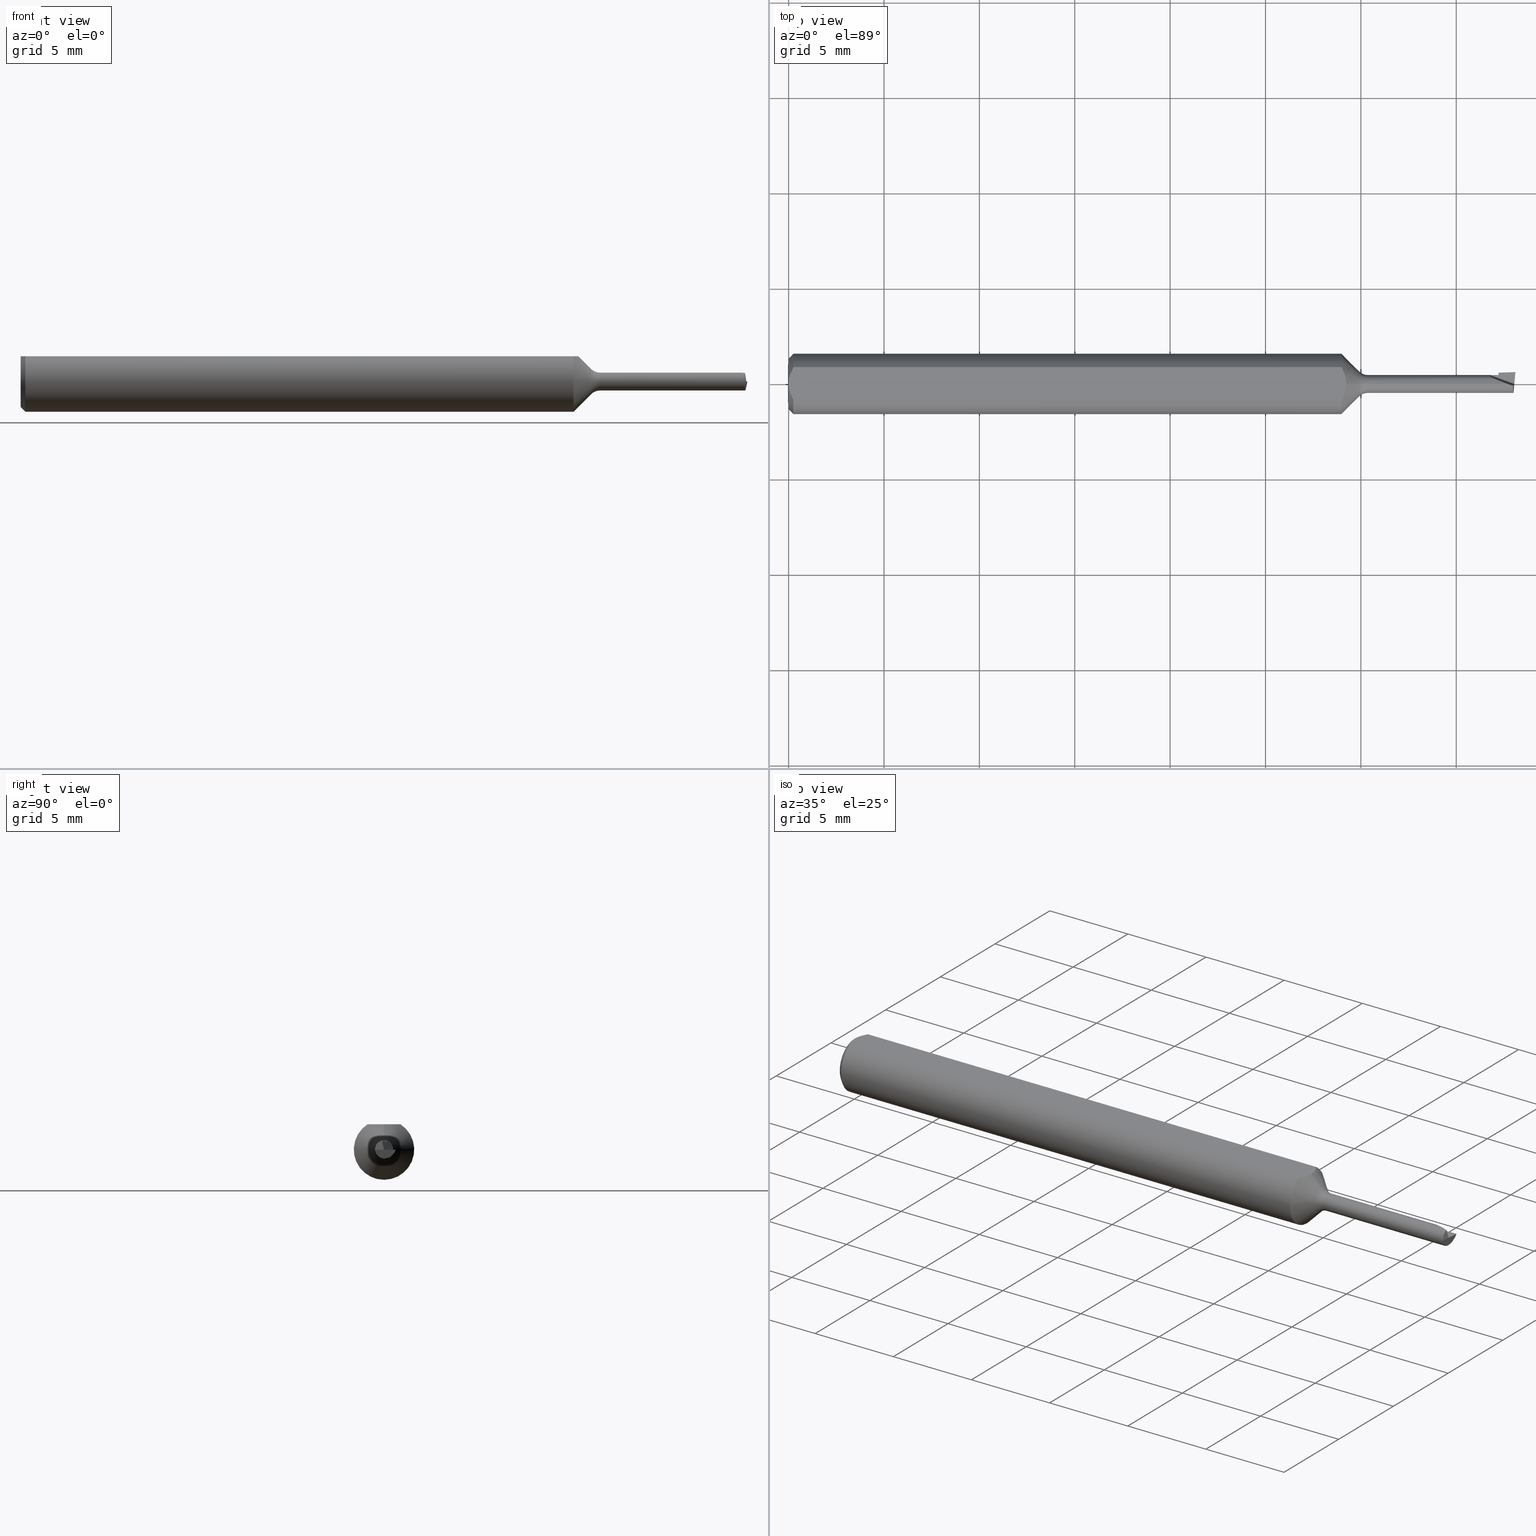
[diagram: canonical four-view strip — front | top / right | iso, engineering-drawing reading convention]
A machine part, canonical four-view strip (front | top / right | iso — engineering-drawing reading convention). The complete STEP part file that produces these views, byte-faithful:
ISO-10303-21;
HEADER;
FILE_DESCRIPTION (( 'STEP AP203' ),
    '1' );
FILE_NAME ('210055-MB045300.STEP',
    '2025-01-30T19:01:10',
    ( '' ),
    ( '' ),
    'SwSTEP 2.0',
    'SolidWorks 2024',
    '' );
FILE_SCHEMA (( 'CONFIG_CONTROL_DESIGN' ));
ENDSEC;

DATA;
#1 = CARTESIAN_POINT ( 'NONE',  ( 0.000000000000000000, 0.000000000000000000, 0.000000000000000000 ) ) ;
#2 = ORIENTED_EDGE ( 'NONE', *, *, #554, .F. ) ;
#3 = SHAPE_DEFINITION_REPRESENTATION ( #136, #102 ) ;
#4 = CARTESIAN_POINT ( 'NONE',  ( 1.500000000000000222, 0.02450000000000000094, -1.067128122525102820E-18 ) ) ;
#5 = EDGE_LOOP ( 'NONE', ( #274, #120, #220, #447, #634, #233 ) ) ;
#6 = DATE_AND_TIME ( #205, #183 ) ;
#7 =( BOUNDED_CURVE ( )  B_SPLINE_CURVE ( 3, ( #480, #334, #144, #529 ),
 .UNSPECIFIED., .F., .F. ) 
 B_SPLINE_CURVE_WITH_KNOTS ( ( 4, 4 ),
 ( 5.951448363857583246, 7.298880934359464945 ),
 .UNSPECIFIED. ) 
 CURVE ( )  GEOMETRIC_REPRESENTATION_ITEM ( )  RATIONAL_B_SPLINE_CURVE ( ( 1.000000000000000000, 0.8543389983611022753, 0.8543389983611022753, 1.000000000000000000 ) ) 
 REPRESENTATION_ITEM ( '' )  );
#8 = VECTOR ( 'NONE', #97, 39.37007874015748143 ) ;
#9 = DIRECTION ( 'NONE',  ( -1.000000000000000000, -0.000000000000000000, -0.000000000000000000 ) ) ;
#10 = ORIENTED_EDGE ( 'NONE', *, *, #470, .F. ) ;
#11 = AXIS2_PLACEMENT_3D ( 'NONE', #381, #337, #332 ) ;
#12 =( BOUNDED_CURVE ( )  B_SPLINE_CURVE ( 3, ( #616, #91, #581, #425 ),
 .UNSPECIFIED., .F., .F. ) 
 B_SPLINE_CURVE_WITH_KNOTS ( ( 4, 4 ),
 ( 5.728084607564618125, 7.298880934359528894 ),
 .UNSPECIFIED. ) 
 CURVE ( )  GEOMETRIC_REPRESENTATION_ITEM ( )  RATIONAL_B_SPLINE_CURVE ( ( 1.000000000000000000, 0.8047378541243617178, 0.8047378541243617178, 1.000000000000000000 ) ) 
 REPRESENTATION_ITEM ( '' )  );
#13 = DIRECTION ( 'NONE',  ( 0.000000000000000000, 0.2588190451025212391, -0.9659258262890682012 ) ) ;
#14 = ORIENTED_EDGE ( 'NONE', *, *, #116, .T. ) ;
#15 = EDGE_CURVE ( 'NONE', #426, #384, #514, .T. ) ;
#16 = DIRECTION ( 'NONE',  ( -0.1550261498412155714, -0.2183092626835797800, 0.9634873941531153507 ) ) ;
#17 = ORIENTED_EDGE ( 'NONE', *, *, #364, .T. ) ;
#18 = CARTESIAN_POINT ( 'NONE',  ( 1.465000000000000080, 0.02275535369517672074, -0.004257947521761099377 ) ) ;
#19 = ORIENTED_EDGE ( 'NONE', *, *, #484, .T. ) ;
#20 = CARTESIAN_POINT ( 'NONE',  ( 1.195355339059327449, 5.327213576290986981E-18, -0.04350000000000000394 ) ) ;
#21 = ORIENTED_EDGE ( 'NONE', *, *, #55, .T. ) ;
#22 = DIRECTION ( 'NONE',  ( 1.000000000000000000, 0.000000000000000000, 0.000000000000000000 ) ) ;
#23 = ORIENTED_EDGE ( 'NONE', *, *, #463, .F. ) ;
#24 = EDGE_CURVE ( 'NONE', #227, #40, #254, .T. ) ;
#25 = CYLINDRICAL_SURFACE ( 'NONE', #291, 0.06235000000000000264 ) ;
#26 = VERTEX_POINT ( 'NONE', #348 ) ;
#27 = LINE ( 'NONE', #486, #296 ) ;
#28 = DIRECTION ( 'NONE',  ( 1.000000000000000000, 0.000000000000000000, 0.000000000000000000 ) ) ;
#29 = ORIENTED_EDGE ( 'NONE', *, *, #611, .T. ) ;
#30 = CIRCLE ( 'NONE', #312, 0.06235000000000000264 ) ;
#31 = DIRECTION ( 'NONE',  ( -1.000000000000000000, -0.000000000000000000, -0.000000000000000000 ) ) ;
#32 = DIRECTION ( 'NONE',  ( 0.9864997997699033183, -0.08630754905047478831, 0.1391731009600657154 ) ) ;
#33 = EDGE_CURVE ( 'NONE', #124, #40, #131, .T. ) ;
#34 = EDGE_LOOP ( 'NONE', ( #71, #465, #624, #271, #189 ) ) ;
#35 = ORIENTED_EDGE ( 'NONE', *, *, #643, .T. ) ;
#36 = UNCERTAINTY_MEASURE_WITH_UNIT (LENGTH_MEASURE( 1.000000000000000082E-05 ), #376, 'distance_accuracy_value', 'NONE');
#37 =( NAMED_UNIT ( * ) PLANE_ANGLE_UNIT ( ) SI_UNIT ( $, .RADIAN. ) );
#38 = CARTESIAN_POINT ( 'NONE',  ( 1.177677669529663573, 3.162323435702260084E-18, -0.02582233047033637152 ) ) ;
#39 = VECTOR ( 'NONE', #585, 39.37007874015748854 ) ;
#40 = VERTEX_POINT ( 'NONE', #600 ) ;
#41 = DIRECTION ( 'NONE',  ( -0.9987822236179720869, -0.04765519936432637688, -0.01276917218481542736 ) ) ;
#42 = ADVANCED_FACE ( 'NONE', ( #549 ), #595, .T. ) ;
#43 = CARTESIAN_POINT ( 'NONE',  ( 1.446998957439701083, 0.01849999999999999908, -4.483286445232968331E-18 ) ) ;
#44 = CONICAL_SURFACE ( 'NONE', #66, 0.02582233047033637499, 0.7853981633974507215 ) ;
#45 = CC_DESIGN_PERSON_AND_ORGANIZATION_ASSIGNMENT ( #602, #501, ( #246 ) ) ;
#46 = CARTESIAN_POINT ( 'NONE',  ( 1.487126106453287244, -0.001380280959563399447, 0.01850000000000000602 ) ) ;
#47 = APPROVAL_ROLE ( '' ) ;
#48 = EDGE_CURVE ( 'NONE', #92, #316, #644, .T. ) ;
#49 = PLANE ( 'NONE',  #399 ) ;
#50 = DIRECTION ( 'NONE',  ( 0.000000000000000000, 0.000000000000000000, -1.000000000000000000 ) ) ;
#51 = DATE_AND_TIME ( #300, #341 ) ;
#52 = DIRECTION ( 'NONE',  ( 0.000000000000000000, 0.000000000000000000, -1.000000000000000000 ) ) ;
#53 = DATE_AND_TIME ( #305, #432 ) ;
#54 = CARTESIAN_POINT ( 'NONE',  ( 1.497856527743614885, 5.157748590581906026E-34, -4.482061838879143203E-18 ) ) ;
#55 = EDGE_CURVE ( 'NONE', #426, #522, #345, .T. ) ;
#56 = EDGE_LOOP ( 'NONE', ( #467, #411, #431, #479, #17, #503 ) ) ;
#57 = PERSON_AND_ORGANIZATION_ROLE ( 'creator' ) ;
#58 = DIRECTION ( 'NONE',  ( -0.08715574274766034468, -0.9961946980917453232, -1.182878904194726503E-16 ) ) ;
#59 = AXIS2_PLACEMENT_3D ( 'NONE', #350, #106, #154 ) ;
#60 = LINE ( 'NONE', #562, #388 ) ;
#61 = ORIENTED_EDGE ( 'NONE', *, *, #251, .T. ) ;
#62 = ADVANCED_FACE ( 'NONE', ( #257 ), #206, .T. ) ;
#63 = LINE ( 'NONE', #18, #590 ) ;
#64 = CLOSED_SHELL ( 'NONE', ( #98, #326, #451, #62, #536, #548, #204, #509, #584, #396, #169, #42, #628, #297, #262, #604, #149, #349, #558 ) ) ;
#65 = ORIENTED_EDGE ( 'NONE', *, *, #474, .T. ) ;
#66 = AXIS2_PLACEMENT_3D ( 'NONE', #368, #31, #538 ) ;
#67 = EDGE_CURVE ( 'NONE', #143, #620, #317, .T. ) ;
#68 = DIRECTION ( 'NONE',  ( 0.000000000000000000, 0.000000000000000000, -1.000000000000000000 ) ) ;
#69 = ORIENTED_EDGE ( 'NONE', *, *, #275, .T. ) ;
#70 = CARTESIAN_POINT ( 'NONE',  ( 1.495558491035186899, 0.003224263161052950705, -0.01828867062739698499 ) ) ;
#71 = ORIENTED_EDGE ( 'NONE', *, *, #319, .F. ) ;
#72 = VECTOR ( 'NONE', #343, 39.37007874015748854 ) ;
#73 = LINE ( 'NONE', #123, #437 ) ;
#74 = EDGE_LOOP ( 'NONE', ( #176, #444, #512, #361 ) ) ;
#75 = EDGE_CURVE ( 'NONE', #522, #516, #30, .T. ) ;
#76 = CC_DESIGN_APPROVAL ( #601, ( #523 ) ) ;
#77 = DIRECTION ( 'NONE',  ( -1.000000000000000000, -0.000000000000000000, -0.000000000000000000 ) ) ;
#78 =( BOUNDED_CURVE ( )  B_SPLINE_CURVE ( 3, ( #95, #292, #487, #43 ),
 .UNSPECIFIED., .F., .F. ) 
 B_SPLINE_CURVE_WITH_KNOTS ( ( 4, 4 ),
 ( 4.990162771046300350, 6.560959097841200460 ),
 .UNSPECIFIED. ) 
 CURVE ( )  GEOMETRIC_REPRESENTATION_ITEM ( )  RATIONAL_B_SPLINE_CURVE ( ( 1.000000000000000000, 0.8047378541243641603, 0.8047378541243641603, 1.000000000000000000 ) ) 
 REPRESENTATION_ITEM ( '' )  );
#79 = ORIENTED_EDGE ( 'NONE', *, *, #406, .T. ) ;
#80 = DIRECTION ( 'NONE',  ( 0.02467767077832642292, -0.7066760308408334135, 0.7071067811865490160 ) ) ;
#81 = DIRECTION ( 'NONE',  ( -1.000000000000000000, 0.000000000000000000, 0.000000000000000000 ) ) ;
#82 = CARTESIAN_POINT ( 'NONE',  ( 0.007185421074056205608, 0.02868573718286560742, 0.05235000000000002152 ) ) ;
#83 = APPROVAL_PERSON_ORGANIZATION ( #438, #572, #47 ) ;
#84 = CARTESIAN_POINT ( 'NONE',  ( 0.000000000000000000, 0.000000000000000000, 0.05235000000000033377 ) ) ;
#85 = EDGE_CURVE ( 'NONE', #130, #90, #544, .T. ) ;
#86 = DIRECTION ( 'NONE',  ( -0.7071067811865457964, 0.000000000000000000, 0.7071067811865492381 ) ) ;
#87 = ORIENTED_EDGE ( 'NONE', *, *, #357, .F. ) ;
#88 = CARTESIAN_POINT ( 'NONE',  ( 0.01000000000000840841, -0.03386738844395137393, 0.05235000000000001458 ) ) ;
#89 = CARTESIAN_POINT ( 'NONE',  ( 1.151149999999999896, -0.005924734429433318843, 0.05235000000000002152 ) ) ;
#90 = VERTEX_POINT ( 'NONE', #599 ) ;
#91 = CARTESIAN_POINT ( 'NONE',  ( 1.494298471761238201, -0.01083704909609784980, -0.01850000000000001643 ) ) ;
#92 = VERTEX_POINT ( 'NONE', #4 ) ;
#93 = EDGE_CURVE ( 'NONE', #92, #534, #160, .T. ) ;
#94 =( NAMED_UNIT ( * ) SI_UNIT ( $, .STERADIAN. ) SOLID_ANGLE_UNIT ( ) );
#95 = CARTESIAN_POINT ( 'NONE',  ( 1.483333815684383605, 0.000000000000000000, 0.01850000000000000255 ) ) ;
#96 = VECTOR ( 'NONE', #244, 39.37007874015748854 ) ;
#97 = DIRECTION ( 'NONE',  ( -0.1593925713349118589, -0.7010550863643484343, -0.6950653020299035756 ) ) ;
#98 = ADVANCED_FACE ( 'NONE', ( #390 ), #156, .T. ) ;
#99 = CYLINDRICAL_SURFACE ( 'NONE', #485, 0.01850000000000000255 ) ;
#100 = APPROVAL_PERSON_ORGANIZATION ( #198, #322, #448 ) ;
#101 = DIRECTION ( 'NONE',  ( -1.000000000000000000, -0.000000000000000000, -0.000000000000000000 ) ) ;
#102 = ADVANCED_BREP_SHAPE_REPRESENTATION ( '210055-MB045300', ( #104, #490 ), #371 ) ;
#103 = ORIENTED_EDGE ( 'NONE', *, *, #638, .T. ) ;
#104 = MANIFOLD_SOLID_BREP ( 'Cut-Extrude8', #64 ) ;
#105 = APPROVAL_DATE_TIME ( #162, #322 ) ;
#106 = DIRECTION ( 'NONE',  ( -1.000000000000000000, -0.000000000000000000, -0.000000000000000000 ) ) ;
#107 = APPROVAL_ROLE ( '' ) ;
#108 = EDGE_CURVE ( 'NONE', #508, #414, #450, .T. ) ;
#109 = DIRECTION ( 'NONE',  ( 1.000000000000000000, 0.000000000000000000, 0.000000000000000000 ) ) ;
#110 = AXIS2_PLACEMENT_3D ( 'NONE', #471, #28, #335 ) ;
#111 = DIMENSIONAL_EXPONENTS ( 1.000000000000000000, 0.000000000000000000, 0.000000000000000000, 0.000000000000000000, 0.000000000000000000, 0.000000000000000000, 0.000000000000000000 ) ;
#112 = CARTESIAN_POINT ( 'NONE',  ( 0.000000000000000000, -0.03386738844375220686, 0.05235000000000000070 ) ) ;
#113 = VECTOR ( 'NONE', #515, 39.37007874015748143 ) ;
#114 = DIRECTION ( 'NONE',  ( 1.000000000000000000, 0.000000000000000000, 0.000000000000000000 ) ) ;
#115 = ORIENTED_EDGE ( 'NONE', *, *, #443, .T. ) ;
#116 = EDGE_CURVE ( 'NONE', #209, #150, #301, .T. ) ;
#117 = VECTOR ( 'NONE', #114, 39.37007874015748143 ) ;
#118 = CC_DESIGN_PERSON_AND_ORGANIZATION_ASSIGNMENT ( #550, #155, ( #328 ) ) ;
#119 = CARTESIAN_POINT ( 'NONE',  ( 1.460024366919236094, 0.02310402013190050036, -1.572938430745744944E-18 ) ) ;
#120 = ORIENTED_EDGE ( 'NONE', *, *, #24, .T. ) ;
#121 = CARTESIAN_POINT ( 'NONE',  ( 1.496776916841381366, -0.001529360825625118410, 0.006704173061983520650 ) ) ;
#122 = ORIENTED_EDGE ( 'NONE', *, *, #618, .F. ) ;
#123 = CARTESIAN_POINT ( 'NONE',  ( 1.177677669529663573, 3.162323435702260854E-18, -0.02582233047033637499 ) ) ;
#124 = VERTEX_POINT ( 'NONE', #203 ) ;
#125 = EDGE_CURVE ( 'NONE', #534, #617, #502, .T. ) ;
#126 = DIRECTION ( 'NONE',  ( 0.9396926207859126468, -0.3420201433256568335, -0.000000000000000000 ) ) ;
#127 = ORIENTED_EDGE ( 'NONE', *, *, #311, .F. ) ;
#128 = AXIS2_PLACEMENT_3D ( 'NONE', #387, #591, #290 ) ;
#129 = CARTESIAN_POINT ( 'NONE',  ( 1.177677669529663573, 0.000000000000000000, 0.02582233047033637499 ) ) ;
#130 = VERTEX_POINT ( 'NONE', #212 ) ;
#131 = CIRCLE ( 'NONE', #182, 0.05235000000000033377 ) ;
#132 = VECTOR ( 'NONE', #41, 39.37007874015748143 ) ;
#133 = PLANE ( 'NONE',  #574 ) ;
#134 = AXIS2_PLACEMENT_3D ( 'NONE', #453, #226, #614 ) ;
#135 = DIRECTION ( 'NONE',  ( 0.000000000000000000, -0.4228298219691071225, -0.9062091048171900809 ) ) ;
#136 = PRODUCT_DEFINITION_SHAPE ( 'NONE', 'NONE',  #385 ) ;
#137 = CARTESIAN_POINT ( 'NONE',  ( 1.151150000000000340, 0.005920815533600999603, 0.05235000000000002152 ) ) ;
#138 = EDGE_CURVE ( 'NONE', #516, #170, #293, .T. ) ;
#139 = CARTESIAN_POINT ( 'NONE',  ( 1.483333815684383605, 0.000000000000000000, 0.01850000000000000255 ) ) ;
#140 = CARTESIAN_POINT ( 'NONE',  ( 1.500296196177055563, 0.02788553779562383261, 3.414809992080329023E-16 ) ) ;
#141 = ORIENTED_EDGE ( 'NONE', *, *, #15, .T. ) ;
#142 = CARTESIAN_POINT ( 'NONE',  ( 1.465000000000000080, 0.02327777306778930702, -1.572938430745744944E-18 ) ) ;
#143 = VERTEX_POINT ( 'NONE', #252 ) ;
#144 = CARTESIAN_POINT ( 'NONE',  ( 1.494967355536287013, -0.01849999999999990541, 0.009006612182587492646 ) ) ;
#145 = FACE_OUTER_BOUND ( 'NONE', #336, .T. ) ;
#146 = EDGE_LOOP ( 'NONE', ( #531, #375, #421, #207, #613 ) ) ;
#147 = FACE_OUTER_BOUND ( 'NONE', #215, .T. ) ;
#148 = DIRECTION ( 'NONE',  ( 0.9396926207859126468, -0.3420201433256567780, 0.000000000000000000 ) ) ;
#149 = ADVANCED_FACE ( 'NONE', ( #260 ), #248, .F. ) ;
#150 = VERTEX_POINT ( 'NONE', #639 ) ;
#151 = AXIS2_PLACEMENT_3D ( 'NONE', #612, #413, #567 ) ;
#152 = MECHANICAL_CONTEXT ( 'NONE', #259, 'mechanical' ) ;
#153 = DIRECTION ( 'NONE',  ( 0.000000000000000000, 0.000000000000000000, 1.000000000000000000 ) ) ;
#154 = DIRECTION ( 'NONE',  ( 0.000000000000000000, 0.000000000000000000, 1.000000000000000000 ) ) ;
#155 = PERSON_AND_ORGANIZATION_ROLE ( 'design_owner' ) ;
#156 = CONICAL_SURFACE ( 'NONE', #211, 0.05235000000000033377, 0.7853981633974376209 ) ;
#157 = LINE ( 'NONE', #202, #72 ) ;
#158 = DIRECTION ( 'NONE',  ( -1.000000000000000000, -0.000000000000000000, -0.000000000000000000 ) ) ;
#159 = APPROVAL_DATE_TIME ( #51, #572 ) ;
#160 = LINE ( 'NONE', #304, #621 ) ;
#161 = EDGE_LOOP ( 'NONE', ( #258, #196, #454, #289, #378 ) ) ;
#162 = DATE_AND_TIME ( #645, #455 ) ;
#163 = CARTESIAN_POINT ( 'NONE',  ( 1.141150000000000109, 0.000000000000000000, 0.000000000000000000 ) ) ;
#164 = TOROIDAL_SURFACE ( 'NONE', #11, 0.04350000000000000394, 0.02499999999999999445 ) ;
#165 = CALENDAR_DATE ( 2025, 30, 1 ) ;
#166 = CARTESIAN_POINT ( 'NONE',  ( 0.009999999999999887451, 0.000000000000000000, -0.06235000000000000264 ) ) ;
#167 = CC_DESIGN_DATE_AND_TIME_ASSIGNMENT ( #556, #491, ( #246 ) ) ;
#168 = FACE_OUTER_BOUND ( 'NONE', #566, .T. ) ;
#169 = ADVANCED_FACE ( 'NONE', ( #344 ), #299, .F. ) ;
#170 = VERTEX_POINT ( 'NONE', #559 ) ;
#171 = PLANE ( 'NONE',  #151 ) ;
#172 = ORIENTED_EDGE ( 'NONE', *, *, #564, .F. ) ;
#173 = FACE_OUTER_BOUND ( 'NONE', #395, .T. ) ;
#174 = VERTEX_POINT ( 'NONE', #518 ) ;
#175 = LINE ( 'NONE', #121, #363 ) ;
#176 = ORIENTED_EDGE ( 'NONE', *, *, #638, .F. ) ;
#177 = VECTOR ( 'NONE', #101, 39.37007874015748143 ) ;
#178 = LINE ( 'NONE', #530, #306 ) ;
#179 = ORIENTED_EDGE ( 'NONE', *, *, #528, .T. ) ;
#180 = AXIS2_PLACEMENT_3D ( 'NONE', #466, #365, #524 ) ;
#181 = ORIENTED_EDGE ( 'NONE', *, *, #33, .F. ) ;
#182 = AXIS2_PLACEMENT_3D ( 'NONE', #500, #449, #52 ) ;
#183 = LOCAL_TIME ( 11, 1, 10.00000000000000000, #386 ) ;
#184 = CARTESIAN_POINT ( 'NONE',  ( 0.000000000000000000, 0.000000000000000000, -0.05235000000000033377 ) ) ;
#185 = CARTESIAN_POINT ( 'NONE',  ( 1.141150000000000109, 0.03386738844375220686, 0.05235000000000000070 ) ) ;
#186 = ORIENTED_EDGE ( 'NONE', *, *, #231, .F. ) ;
#187 = EDGE_CURVE ( 'NONE', #170, #287, #261, .T. ) ;
#188 = CARTESIAN_POINT ( 'NONE',  ( 1.144001488371463315, -0.02861778674340263381, 0.05235000000000002152 ) ) ;
#189 = ORIENTED_EDGE ( 'NONE', *, *, #75, .F. ) ;
#190 = AXIS2_PLACEMENT_3D ( 'NONE', #277, #377, #619 ) ;
#191 = LINE ( 'NONE', #526, #452 ) ;
#192 = CARTESIAN_POINT ( 'NONE',  ( 1.146488788636946587, 0.02320328458619741463, 0.05235000000000002152 ) ) ;
#193 = DESIGN_CONTEXT ( 'detailed design', #216, 'design' ) ;
#194 = LINE ( 'NONE', #234, #132 ) ;
#195 = FACE_OUTER_BOUND ( 'NONE', #56, .T. ) ;
#196 = ORIENTED_EDGE ( 'NONE', *, *, #48, .F. ) ;
#197 = AXIS2_PLACEMENT_3D ( 'NONE', #318, #13, #358 ) ;
#198 = PERSON_AND_ORGANIZATION ( #552, #218 ) ;
#199 = PLANE ( 'NONE',  #128 ) ;
#200 = DIRECTION ( 'NONE',  ( -0.000000000000000000, 0.9659258262890682012, 0.2588190451025212946 ) ) ;
#201 = CC_DESIGN_APPROVAL ( #572, ( #246 ) ) ;
#202 = CARTESIAN_POINT ( 'NONE',  ( 1.496684692676496731, 0.01221299988732022293, -0.01588014588061767429 ) ) ;
#203 = CARTESIAN_POINT ( 'NONE',  ( 0.000000000000000000, 0.000000000000000000, -0.05235000000000033377 ) ) ;
#204 = ADVANCED_FACE ( 'NONE', ( #263 ), #171, .F. ) ;
#205 = CALENDAR_DATE ( 2025, 30, 1 ) ;
#206 = CYLINDRICAL_SURFACE ( 'NONE', #294, 0.01850000000000000255 ) ;
#207 = ORIENTED_EDGE ( 'NONE', *, *, #389, .F. ) ;
#208 = CARTESIAN_POINT ( 'NONE',  ( 0.000000000000000000, 0.000000000000000000, 0.000000000000000000 ) ) ;
#209 = VERTEX_POINT ( 'NONE', #408 ) ;
#210 = APPROVAL_STATUS ( 'not_yet_approved' ) ;
#211 = AXIS2_PLACEMENT_3D ( 'NONE', #208, #397, #50 ) ;
#212 = CARTESIAN_POINT ( 'NONE',  ( 1.195355339059327449, 0.000000000000000000, 0.01850000000000000949 ) ) ;
#213 = CC_DESIGN_PERSON_AND_ORGANIZATION_ASSIGNMENT ( #249, #589, ( #523 ) ) ;
#214 = CIRCLE ( 'NONE', #321, 0.05235000000000033377 ) ;
#215 = EDGE_LOOP ( 'NONE', ( #563, #588, #242, #483 ) ) ;
#216 = APPLICATION_CONTEXT ( 'configuration controlled 3d designs of mechanical parts and assemblies' ) ;
#217 = EDGE_CURVE ( 'NONE', #476, #92, #353, .T. ) ;
#218 = ORGANIZATION ( 'UNSPECIFIED', 'UNSPECIFIED', '' ) ;
#219 = DIRECTION ( 'NONE',  ( 0.9993908270190957621, 0.03489949670250171165, 4.587456144808678678E-17 ) ) ;
#220 = ORIENTED_EDGE ( 'NONE', *, *, #564, .T. ) ;
#221 = FACE_OUTER_BOUND ( 'NONE', #338, .T. ) ;
#222 = EDGE_LOOP ( 'NONE', ( #462, #79, #23, #268, #320, #366, #608 ) ) ;
#223 = CARTESIAN_POINT ( 'NONE',  ( 0.7984117945685827999, 3.886970232290855934E-33, -3.377760788655366709E-17 ) ) ;
#224 = EDGE_LOOP ( 'NONE', ( #527, #186, #2, #264 ) ) ;
#225 = EDGE_CURVE ( 'NONE', #354, #150, #63, .T. ) ;
#226 = DIRECTION ( 'NONE',  ( -1.000000000000000000, -0.000000000000000000, -0.000000000000000000 ) ) ;
#227 = VERTEX_POINT ( 'NONE', #410 ) ;
#228 = CARTESIAN_POINT ( 'NONE',  ( 1.495754431199804557, 0.004788152334396648772, -0.01786962778634774984 ) ) ;
#229 = CIRCLE ( 'NONE', #636, 0.02499999999999999445 ) ;
#230 = ORIENTED_EDGE ( 'NONE', *, *, #75, .T. ) ;
#231 = EDGE_CURVE ( 'NONE', #547, #316, #60, .T. ) ;
#232 = LINE ( 'NONE', #482, #39 ) ;
#233 = ORIENTED_EDGE ( 'NONE', *, *, #15, .F. ) ;
#234 = CARTESIAN_POINT ( 'NONE',  ( 1.559665859629950191, 0.01524471709213553669, -0.01506779970390787100 ) ) ;
#235 = CARTESIAN_POINT ( 'NONE',  ( 1.195355339059327449, 0.000000000000000000, 0.04350000000000000394 ) ) ;
#236 = ORIENTED_EDGE ( 'NONE', *, *, #55, .F. ) ;
#237 = DIRECTION ( 'NONE',  ( 0.7071067811865550112, 0.000000000000000000, -0.7071067811865400232 ) ) ;
#238 = LINE ( 'NONE', #140, #96 ) ;
#239 = ORIENTED_EDGE ( 'NONE', *, *, #319, .T. ) ;
#240 = DIRECTION ( 'NONE',  ( 0.000000000000000000, -0.7073221891495888869, -0.7068913075831623205 ) ) ;
#241 = CARTESIAN_POINT ( 'NONE',  ( 1.146482645487523655, -0.02321992653401852222, 0.05235000000000001458 ) ) ;
#242 = ORIENTED_EDGE ( 'NONE', *, *, #618, .T. ) ;
#243 = EDGE_CURVE ( 'NONE', #547, #174, #267, .T. ) ;
#244 = DIRECTION ( 'NONE',  ( -0.08715574274765613971, -0.9961946980917456562, -1.465142694903730263E-15 ) ) ;
#245 = ORIENTED_EDGE ( 'NONE', *, *, #93, .T. ) ;
#246 = SECURITY_CLASSIFICATION ( '', '', #445 ) ;
#247 = DIRECTION ( 'NONE',  ( 0.000000000000000000, 0.000000000000000000, 1.000000000000000000 ) ) ;
#248 = PLANE ( 'NONE',  #468 ) ;
#249 = PERSON_AND_ORGANIZATION ( #552, #218 ) ;
#250 = DIRECTION ( 'NONE',  ( 0.000000000000000000, 0.000000000000000000, -1.000000000000000000 ) ) ;
#251 = EDGE_CURVE ( 'NONE', #316, #143, #175, .T. ) ;
#252 = CARTESIAN_POINT ( 'NONE',  ( 1.494952902551172302, -0.004097954674002866546, 0.01804042038007480295 ) ) ;
#253 = CC_DESIGN_SECURITY_CLASSIFICATION ( #246, ( #523 ) ) ;
#254 = B_SPLINE_CURVE_WITH_KNOTS ( 'NONE', 3,
 ( #537, #82, #281, #472, #580, #551 ),
 .UNSPECIFIED., .F., .F.,
 ( 4, 2, 4 ),
 ( 0.0009229516234078821539, 0.001371626545108044996, 0.001820301466808207621 ),
 .UNSPECIFIED. ) ;
#255 = DIRECTION ( 'NONE',  ( 0.000000000000000000, 0.000000000000000000, 1.000000000000000000 ) ) ;
#256 = PERSON_AND_ORGANIZATION_ROLE ( 'creator' ) ;
#257 = FACE_OUTER_BOUND ( 'NONE', #582, .T. ) ;
#258 = ORIENTED_EDGE ( 'NONE', *, *, #231, .T. ) ;
#259 = APPLICATION_CONTEXT ( 'configuration controlled 3d designs of mechanical parts and assemblies' ) ;
#260 = FACE_OUTER_BOUND ( 'NONE', #222, .T. ) ;
#261 = CIRCLE ( 'NONE', #308, 0.06235000000000000264 ) ;
#262 = ADVANCED_FACE ( 'NONE', ( #221 ), #307, .F. ) ;
#263 = FACE_OUTER_BOUND ( 'NONE', #146, .T. ) ;
#264 = ORIENTED_EDGE ( 'NONE', *, *, #67, .F. ) ;
#265 = AXIS2_PLACEMENT_3D ( 'NONE', #446, #9, #255 ) ;
#266 = APPROVAL_PERSON_ORGANIZATION ( #302, #601, #107 ) ;
#267 = LINE ( 'NONE', #456, #117 ) ;
#268 = ORIENTED_EDGE ( 'NONE', *, *, #286, .F. ) ;
#269 = ORIENTED_EDGE ( 'NONE', *, *, #496, .F. ) ;
#270 = PLANE ( 'NONE',  #197 ) ;
#271 = ORIENTED_EDGE ( 'NONE', *, *, #434, .T. ) ;
#272 = AXIS2_PLACEMENT_3D ( 'NONE', #235, #419, #623 ) ;
#273 = CARTESIAN_POINT ( 'NONE',  ( 1.495754431199804557, 0.004788152334396648772, -0.01786962778634774984 ) ) ;
#274 = ORIENTED_EDGE ( 'NONE', *, *, #275, .F. ) ;
#275 = EDGE_CURVE ( 'NONE', #227, #426, #458, .T. ) ;
#276 = CC_DESIGN_DATE_AND_TIME_ASSIGNMENT ( #6, #441, ( #385 ) ) ;
#277 = CARTESIAN_POINT ( 'NONE',  ( 1.195355339059327449, 0.000000000000000000, 0.000000000000000000 ) ) ;
#278 = CARTESIAN_POINT ( 'NONE',  ( 1.143992034642578703, 0.02863519109676610983, 0.05235000000000002152 ) ) ;
#279 = FACE_OUTER_BOUND ( 'NONE', #34, .T. ) ;
#280 = DIRECTION ( 'NONE',  ( 0.000000000000000000, 0.000000000000000000, 1.000000000000000000 ) ) ;
#281 = CARTESIAN_POINT ( 'NONE',  ( 0.004671770759546769666, 0.02323517832780105236, 0.05235000000000002152 ) ) ;
#282 = CARTESIAN_POINT ( 'NONE',  ( -1.070637973615595603E-15, -0.005965286321711177862, 0.05235000000000002152 ) ) ;
#283 = CARTESIAN_POINT ( 'NONE',  ( 1.151150000000000118, -1.477724062875314838E-21, 0.05235000000000001458 ) ) ;
#284 = CARTESIAN_POINT ( 'NONE',  ( 1.141150000000000109, 0.03386738844375220686, 0.05235000000000000070 ) ) ;
#285 = CARTESIAN_POINT ( 'NONE',  ( 0.000000000000000000, 0.000000000000000000, 0.000000000000000000 ) ) ;
#286 = EDGE_CURVE ( 'NONE', #330, #570, #380, .T. ) ;
#287 = VERTEX_POINT ( 'NONE', #166 ) ;
#288 = LINE ( 'NONE', #370, #367 ) ;
#289 = ORIENTED_EDGE ( 'NONE', *, *, #597, .F. ) ;
#290 = DIRECTION ( 'NONE',  ( -1.000000000000000000, 0.000000000000000000, -0.000000000000000000 ) ) ;
#291 = AXIS2_PLACEMENT_3D ( 'NONE', #285, #77, #280 ) ;
#292 = CARTESIAN_POINT ( 'NONE',  ( 1.453559267999332549, 0.01083704909609771623, 0.01850000000000004072 ) ) ;
#293 = LINE ( 'NONE', #112, #177 ) ;
#294 = AXIS2_PLACEMENT_3D ( 'NONE', #1, #158, #347 ) ;
#295 = DIRECTION ( 'NONE',  ( 1.000000000000000000, 0.000000000000000000, 0.000000000000000000 ) ) ;
#296 = VECTOR ( 'NONE', #573, 39.37007874015748143 ) ;
#297 = ADVANCED_FACE ( 'NONE', ( #173 ), #270, .T. ) ;
#298 = CARTESIAN_POINT ( 'NONE',  ( 0.000000000000000000, 0.000000000000000000, 0.000000000000000000 ) ) ;
#299 = PLANE ( 'NONE',  #539 ) ;
#300 = CALENDAR_DATE ( 2025, 30, 1 ) ;
#301 = LINE ( 'NONE', #440, #415 ) ;
#302 = PERSON_AND_ORGANIZATION ( #552, #218 ) ;
#303 = DIRECTION ( 'NONE',  ( -1.000000000000000000, -0.000000000000000000, -0.000000000000000000 ) ) ;
#304 = CARTESIAN_POINT ( 'NONE',  ( 1.498845433956495388, 0.02150713782118080994, -0.006327893575437196390 ) ) ;
#305 = CALENDAR_DATE ( 2025, 30, 1 ) ;
#306 = VECTOR ( 'NONE', #323, 39.37007874015748143 ) ;
#307 = PLANE ( 'NONE',  #481 ) ;
#308 = AXIS2_PLACEMENT_3D ( 'NONE', #405, #22, #68 ) ;
#309 = CARTESIAN_POINT ( 'NONE',  ( 1.491155917282976695, 0.03518992960932577213, 0.06931876481191029393 ) ) ;
#310 = EDGE_LOOP ( 'NONE', ( #21, #230, #407, #457, #19, #69 ) ) ;
#311 = EDGE_CURVE ( 'NONE', #414, #90, #229, .T. ) ;
#312 = AXIS2_PLACEMENT_3D ( 'NONE', #163, #442, #592 ) ;
#313 = CARTESIAN_POINT ( 'NONE',  ( 0.000000000000000000, 0.03386738844375220686, 0.05235000000000000070 ) ) ;
#314 = ORIENTED_EDGE ( 'NONE', *, *, #496, .T. ) ;
#315 = FACE_OUTER_BOUND ( 'NONE', #409, .T. ) ;
#316 = VERTEX_POINT ( 'NONE', #521 ) ;
#317 =( BOUNDED_CURVE ( )  B_SPLINE_CURVE ( 3, ( #545, #605, #46, #541 ),
 .UNSPECIFIED., .F., .F. ) 
 B_SPLINE_CURVE_WITH_KNOTS ( ( 4, 4 ),
 ( 4.766799014753298813, 4.990162771046300350 ),
 .UNSPECIFIED. ) 
 CURVE ( )  GEOMETRIC_REPRESENTATION_ITEM ( )  RATIONAL_B_SPLINE_CURVE ( ( 1.000000000000000000, 0.9958467056734143785, 0.9958467056734143785, 1.000000000000000000 ) ) 
 REPRESENTATION_ITEM ( '' )  );
#318 = CARTESIAN_POINT ( 'NONE',  ( 1.560200597524541877, 0.004788152334396648772, -0.01786962778634774984 ) ) ;
#319 = EDGE_CURVE ( 'NONE', #414, #522, #73, .T. ) ;
#320 = ORIENTED_EDGE ( 'NONE', *, *, #517, .T. ) ;
#321 = AXIS2_PLACEMENT_3D ( 'NONE', #435, #391, #250 ) ;
#322 = APPROVAL ( #598, 'UNSPECIFIED' ) ;
#323 = DIRECTION ( 'NONE',  ( -1.000000000000000000, -0.000000000000000000, -0.000000000000000000 ) ) ;
#324 = LOCAL_TIME ( 11, 1, 10.00000000000000000, #351 ) ;
#325 = ORIENTED_EDGE ( 'NONE', *, *, #364, .F. ) ;
#326 = ADVANCED_FACE ( 'NONE', ( #315 ), #577, .T. ) ;
#327 = CARTESIAN_POINT ( 'NONE',  ( 0.004679365186825695105, -0.02325953974091124477, 0.05235000000000000764 ) ) ;
#328 = PRODUCT ( '210055-MB045300', '210055-MB045300', '', ( #152 ) ) ;
#329 = CARTESIAN_POINT ( 'NONE',  ( 1.177677669529663573, 0.000000000000000000, 0.000000000000000000 ) ) ;
#330 = VERTEX_POINT ( 'NONE', #273 ) ;
#331 =( LENGTH_UNIT ( ) NAMED_UNIT ( * ) SI_UNIT ( $, .METRE. ) );
#332 = DIRECTION ( 'NONE',  ( 0.000000000000000000, 0.000000000000000000, 1.000000000000000000 ) ) ;
#333 = ORIENTED_EDGE ( 'NONE', *, *, #243, .T. ) ;
#334 = CARTESIAN_POINT ( 'NONE',  ( 1.494465960141844851, -0.01288082332125570564, 0.01604535613734157234 ) ) ;
#335 = DIRECTION ( 'NONE',  ( 0.000000000000000000, 0.000000000000000000, -1.000000000000000000 ) ) ;
#336 = EDGE_LOOP ( 'NONE', ( #87, #525, #115, #269 ) ) ;
#337 = DIRECTION ( 'NONE',  ( -1.000000000000000000, -0.000000000000000000, -0.000000000000000000 ) ) ;
#338 = EDGE_LOOP ( 'NONE', ( #627, #245, #631, #10 ) ) ;
#339 = APPLICATION_PROTOCOL_DEFINITION ( 'international standard', 'config_control_design', 1994, #259 ) ;
#340 = CARTESIAN_POINT ( 'NONE',  ( 1.195355339059327449, 0.000000000000000000, 0.000000000000000000 ) ) ;
#341 = LOCAL_TIME ( 11, 1, 10.00000000000000000, #641 ) ;
#342 = CARTESIAN_POINT ( 'NONE',  ( 1.497591963102740786, 0.01621548884024824957, -0.01193127157655284563 ) ) ;
#343 = DIRECTION ( 'NONE',  ( 0.1201445221440180927, 0.9589290576775757469, 0.2569442666034444378 ) ) ;
#344 = FACE_OUTER_BOUND ( 'NONE', #561, .T. ) ;
#345 = CIRCLE ( 'NONE', #571, 0.06235000000000000264 ) ;
#346 = APPROVAL_DATE_TIME ( #53, #601 ) ;
#347 = DIRECTION ( 'NONE',  ( 0.000000000000000000, 0.000000000000000000, 1.000000000000000000 ) ) ;
#348 = CARTESIAN_POINT ( 'NONE',  ( 1.496237987468385322, -0.01849999999999996439, 2.732599657287118718E-16 ) ) ;
#349 = ADVANCED_FACE ( 'NONE', ( #168 ), #557, .T. ) ;
#350 = CARTESIAN_POINT ( 'NONE',  ( 1.177677669529663573, 0.000000000000000000, 0.000000000000000000 ) ) ;
#351 = COORDINATED_UNIVERSAL_TIME_OFFSET ( 8, 0, .BEHIND. ) ;
#352 = DIRECTION ( 'NONE',  ( -0.7071067811865457964, 8.659560562354953812E-17, -0.7071067811865492381 ) ) ;
#353 = LINE ( 'NONE', #223, #507 ) ;
#354 = VERTEX_POINT ( 'NONE', #569 ) ;
#355 = DIRECTION ( 'NONE',  ( 0.000000000000000000, -0.7073221891495888869, -0.7068913075831623205 ) ) ;
#356 = ORIENTED_EDGE ( 'NONE', *, *, #187, .F. ) ;
#357 = EDGE_CURVE ( 'NONE', #414, #508, #373, .T. ) ;
#358 = DIRECTION ( 'NONE',  ( 0.000000000000000000, 0.9659258262890682012, 0.2588190451025212391 ) ) ;
#359 = ORIENTED_EDGE ( 'NONE', *, *, #406, .F. ) ;
#360 = CARTESIAN_POINT ( 'NONE',  ( 0.000000000000000000, 0.000000000000000000, 0.000000000000000000 ) ) ;
#361 = ORIENTED_EDGE ( 'NONE', *, *, #484, .F. ) ;
#362 = CC_DESIGN_PERSON_AND_ORGANIZATION_ASSIGNMENT ( #499, #256, ( #523 ) ) ;
#363 = VECTOR ( 'NONE', #16, 39.37007874015748143 ) ;
#364 = EDGE_CURVE ( 'NONE', #620, #130, #178, .T. ) ;
#365 = DIRECTION ( 'NONE',  ( -1.000000000000000000, -0.000000000000000000, -0.000000000000000000 ) ) ;
#366 = ORIENTED_EDGE ( 'NONE', *, *, #125, .F. ) ;
#367 = VECTOR ( 'NONE', #135, 39.37007874015748854 ) ;
#368 = CARTESIAN_POINT ( 'NONE',  ( 1.177677669529663573, 0.000000000000000000, 0.000000000000000000 ) ) ;
#369 = AXIS2_PLACEMENT_3D ( 'NONE', #392, #109, #596 ) ;
#370 = CARTESIAN_POINT ( 'NONE',  ( 1.465000000000000080, 0.02242357863109861044, -0.001830709982111567661 ) ) ;
#371 =( GEOMETRIC_REPRESENTATION_CONTEXT ( 3 ) GLOBAL_UNCERTAINTY_ASSIGNED_CONTEXT ( ( #36 ) ) GLOBAL_UNIT_ASSIGNED_CONTEXT ( ( #376, #37, #94 ) ) REPRESENTATION_CONTEXT ( 'NONE', 'WORKASPACE' ) );
#372 = ORIENTED_EDGE ( 'NONE', *, *, #85, .T. ) ;
#373 = CIRCLE ( 'NONE', #560, 0.02582233047033637499 ) ;
#374 = CARTESIAN_POINT ( 'NONE',  ( 1.150078879331740023, -0.01191647624495716616, 0.05235000000000002152 ) ) ;
#375 = ORIENTED_EDGE ( 'NONE', *, *, #225, .T. ) ;
#376 =( CONVERSION_BASED_UNIT ( 'INCH', #532 ) LENGTH_UNIT ( ) NAMED_UNIT ( #111 ) );
#377 = DIRECTION ( 'NONE',  ( -1.000000000000000000, -0.000000000000000000, -0.000000000000000000 ) ) ;
#378 = ORIENTED_EDGE ( 'NONE', *, *, #243, .F. ) ;
#379 = DIRECTION ( 'NONE',  ( 0.000000000000000000, 1.000000000000000000, 1.150753554054429375E-16 ) ) ;
#380 =( BOUNDED_CURVE ( )  B_SPLINE_CURVE ( 3, ( #228, #70, #506, #607 ),
 .UNSPECIFIED., .F., .F. ) 
 B_SPLINE_CURVE_WITH_KNOTS ( ( 4, 4 ),
 ( 5.466285219765468995, 5.728084607564618125 ),
 .UNSPECIFIED. ) 
 CURVE ( )  GEOMETRIC_REPRESENTATION_ITEM ( )  RATIONAL_B_SPLINE_CURVE ( ( 1.000000000000000000, 0.9942965742492069214, 0.9942965742492069214, 1.000000000000000000 ) ) 
 REPRESENTATION_ITEM ( '' )  );
#381 = CARTESIAN_POINT ( 'NONE',  ( 1.195355339059327449, 0.000000000000000000, 0.000000000000000000 ) ) ;
#382 = CARTESIAN_POINT ( 'NONE',  ( 1.150078615661969117, 0.01191463382135334557, 0.05235000000000001458 ) ) ;
#383 = LINE ( 'NONE', #422, #606 ) ;
#384 = VERTEX_POINT ( 'NONE', #535 ) ;
#385 = PRODUCT_DEFINITION ( 'UNKNOWN', '', #523, #193 ) ;
#386 = COORDINATED_UNIVERSAL_TIME_OFFSET ( 8, 0, .BEHIND. ) ;
#387 = CARTESIAN_POINT ( 'NONE',  ( 1.500000000000000222, 0.06235000000000000264, 0.05235000000000001458 ) ) ;
#388 = VECTOR ( 'NONE', #126, 39.37007874015748854 ) ;
#389 = EDGE_CURVE ( 'NONE', #174, #209, #513, .T. ) ;
#390 = FACE_OUTER_BOUND ( 'NONE', #640, .T. ) ;
#391 = DIRECTION ( 'NONE',  ( -1.000000000000000000, -0.000000000000000000, -0.000000000000000000 ) ) ;
#392 = CARTESIAN_POINT ( 'NONE',  ( 0.000000000000000000, 0.000000000000000000, 0.000000000000000000 ) ) ;
#393 = COORDINATED_UNIVERSAL_TIME_OFFSET ( 8, 0, .BEHIND. ) ;
#394 = DIRECTION ( 'NONE',  ( 0.000000000000000000, 0.000000000000000000, 1.000000000000000000 ) ) ;
#395 = EDGE_LOOP ( 'NONE', ( #417, #65, #14, #122 ) ) ;
#396 = ADVANCED_FACE ( 'NONE', ( #475 ), #25, .T. ) ;
#397 = DIRECTION ( 'NONE',  ( 1.000000000000000000, 0.000000000000000000, 0.000000000000000000 ) ) ;
#398 = COORDINATED_UNIVERSAL_TIME_OFFSET ( 8, 0, .BEHIND. ) ;
#399 = AXIS2_PLACEMENT_3D ( 'NONE', #439, #543, #148 ) ;
#400 = VECTOR ( 'NONE', #237, 39.37007874015748143 ) ;
#401 = B_SPLINE_CURVE_WITH_KNOTS ( 'NONE', 3,
 ( #283, #89, #374, #241, #188, #416 ),
 .UNSPECIFIED., .F., .F.,
 ( 4, 2, 4 ),
 ( 0.002916663230282895512, 0.003365861382119353894, 0.003815059533955811842 ),
 .UNSPECIFIED. ) ;
#402 = DIRECTION ( 'NONE',  ( 0.000000000000000000, -0.4228298219691071225, -0.9062091048171900809 ) ) ;
#403 = ORIENTED_EDGE ( 'NONE', *, *, #33, .T. ) ;
#404 = CC_DESIGN_PERSON_AND_ORGANIZATION_ASSIGNMENT ( #495, #57, ( #385 ) ) ;
#405 = CARTESIAN_POINT ( 'NONE',  ( 0.009999999999999887451, 0.000000000000000000, 0.000000000000000000 ) ) ;
#406 = EDGE_CURVE ( 'NONE', #316, #26, #238, .T. ) ;
#407 = ORIENTED_EDGE ( 'NONE', *, *, #138, .T. ) ;
#408 = CARTESIAN_POINT ( 'NONE',  ( 1.465000000000000080, 0.004788152334396648772, -0.01786962778634774984 ) ) ;
#409 = EDGE_LOOP ( 'NONE', ( #615, #239, #236, #141, #610 ) ) ;
#410 = CARTESIAN_POINT ( 'NONE',  ( 0.009999999999999890921, 0.03386738844375217911, 0.05235000000000001458 ) ) ;
#411 = ORIENTED_EDGE ( 'NONE', *, *, #463, .T. ) ;
#412 = EDGE_CURVE ( 'NONE', #354, #534, #232, .T. ) ;
#413 = DIRECTION ( 'NONE',  ( 1.000000000000000000, 0.000000000000000000, 0.000000000000000000 ) ) ;
#414 = VERTEX_POINT ( 'NONE', #38 ) ;
#415 = VECTOR ( 'NONE', #200, 39.37007874015747433 ) ;
#416 = CARTESIAN_POINT ( 'NONE',  ( 1.141150000000000109, -0.03386738844375220686, 0.05235000000000000070 ) ) ;
#417 = ORIENTED_EDGE ( 'NONE', *, *, #517, .F. ) ;
#418 = FACE_OUTER_BOUND ( 'NONE', #161, .T. ) ;
#419 = DIRECTION ( 'NONE',  ( 0.000000000000000000, -1.000000000000000000, 0.000000000000000000 ) ) ;
#420 = AXIS2_PLACEMENT_3D ( 'NONE', #622, #583, #379 ) ;
#421 = ORIENTED_EDGE ( 'NONE', *, *, #116, .F. ) ;
#422 = CARTESIAN_POINT ( 'NONE',  ( 0.000000000000000000, 2.265596578422603809E-18, -0.01850000000000000255 ) ) ;
#423 = DIRECTION ( 'NONE',  ( -1.000000000000000000, -0.000000000000000000, -0.000000000000000000 ) ) ;
#424 = ORIENTED_EDGE ( 'NONE', *, *, #286, .T. ) ;
#425 = CARTESIAN_POINT ( 'NONE',  ( 1.496237987468385322, -0.01849999999999996439, 2.732599657287118718E-16 ) ) ;
#426 = VERTEX_POINT ( 'NONE', #185 ) ;
#427 = CIRCLE ( 'NONE', #190, 0.01850000000000000949 ) ;
#428 = CARTESIAN_POINT ( 'NONE',  ( 0.000000000000000000, 0.000000000000000000, 0.000000000000000000 ) ) ;
#429 = EDGE_CURVE ( 'NONE', #508, #384, #626, .T. ) ;
#430 = FACE_OUTER_BOUND ( 'NONE', #224, .T. ) ;
#431 = ORIENTED_EDGE ( 'NONE', *, *, #643, .F. ) ;
#432 = LOCAL_TIME ( 11, 1, 10.00000000000000000, #398 ) ;
#433 = DIRECTION ( 'NONE',  ( -1.000000000000000000, -0.000000000000000000, -0.000000000000000000 ) ) ;
#434 = EDGE_CURVE ( 'NONE', #384, #516, #401, .T. ) ;
#435 = CARTESIAN_POINT ( 'NONE',  ( 0.000000000000000000, 0.000000000000000000, 0.000000000000000000 ) ) ;
#436 = DIRECTION ( 'NONE',  ( 0.1396943646708782849, 0.000000000000000000, 0.9901946699913101169 ) ) ;
#437 = VECTOR ( 'NONE', #352, 39.37007874015748143 ) ;
#438 = PERSON_AND_ORGANIZATION ( #552, #218 ) ;
#439 = CARTESIAN_POINT ( 'NONE',  ( 1.405776579097274936, 0.03350371870230225285, -4.483286445232968331E-18 ) ) ;
#440 = CARTESIAN_POINT ( 'NONE',  ( 1.465000000000000080, 0.02204888731940269492, -0.01324462778634774400 ) ) ;
#441 = DATE_TIME_ROLE ( 'creation_date' ) ;
#442 = DIRECTION ( 'NONE',  ( -1.000000000000000000, -0.000000000000000000, -0.000000000000000000 ) ) ;
#443 = EDGE_CURVE ( 'NONE', #90, #130, #427, .T. ) ;
#444 = ORIENTED_EDGE ( 'NONE', *, *, #528, .F. ) ;
#445 = SECURITY_CLASSIFICATION_LEVEL ( 'unclassified' ) ;
#446 = CARTESIAN_POINT ( 'NONE',  ( 1.195355339059327449, 0.000000000000000000, 0.000000000000000000 ) ) ;
#447 = ORIENTED_EDGE ( 'NONE', *, *, #138, .F. ) ;
#448 = APPROVAL_ROLE ( '' ) ;
#449 = DIRECTION ( 'NONE',  ( -1.000000000000000000, -0.000000000000000000, -0.000000000000000000 ) ) ;
#450 = CIRCLE ( 'NONE', #59, 0.02582233047033637499 ) ;
#451 = ADVANCED_FACE ( 'NONE', ( #145 ), #164, .F. ) ;
#452 = VECTOR ( 'NONE', #81, 39.37007874015748143 ) ;
#453 = CARTESIAN_POINT ( 'NONE',  ( 1.177677669529663573, 0.000000000000000000, 0.000000000000000000 ) ) ;
#454 = ORIENTED_EDGE ( 'NONE', *, *, #217, .F. ) ;
#455 = LOCAL_TIME ( 11, 1, 10.00000000000000000, #393 ) ;
#456 = CARTESIAN_POINT ( 'NONE',  ( 2.815371162439451627E-33, 0.01850000000000000255, -6.508939666095427711E-17 ) ) ;
#457 = ORIENTED_EDGE ( 'NONE', *, *, #187, .T. ) ;
#458 = LINE ( 'NONE', #313, #113 ) ;
#459 = ORIENTED_EDGE ( 'NONE', *, *, #85, .F. ) ;
#460 = CIRCLE ( 'NONE', #272, 0.02499999999999999445 ) ;
#461 = DIRECTION ( 'NONE',  ( 0.000000000000000000, -1.224646799147353207E-16, 1.000000000000000000 ) ) ;
#462 = ORIENTED_EDGE ( 'NONE', *, *, #48, .T. ) ;
#463 = EDGE_CURVE ( 'NONE', #570, #26, #12, .T. ) ;
#464 = DIRECTION ( 'NONE',  ( 0.000000000000000000, 0.000000000000000000, -1.000000000000000000 ) ) ;
#465 = ORIENTED_EDGE ( 'NONE', *, *, #357, .T. ) ;
#466 = CARTESIAN_POINT ( 'NONE',  ( 1.465000000000000080, 0.000000000000000000, 0.000000000000000000 ) ) ;
#467 = ORIENTED_EDGE ( 'NONE', *, *, #611, .F. ) ;
#468 = AXIS2_PLACEMENT_3D ( 'NONE', #489, #497, #436 ) ;
#469 = CARTESIAN_POINT ( 'NONE',  ( 0.001055043921644571291, -0.01186408073217194367, 0.05235000000000002152 ) ) ;
#470 = EDGE_CURVE ( 'NONE', #476, #354, #288, .T. ) ;
#471 = CARTESIAN_POINT ( 'NONE',  ( 0.009999999999999887451, 0.000000000000000000, 0.000000000000000000 ) ) ;
#472 = CARTESIAN_POINT ( 'NONE',  ( 0.001063697276021357847, 0.01189177144351693735, 0.05235000000000001458 ) ) ;
#473 = LINE ( 'NONE', #184, #400 ) ;
#474 = EDGE_CURVE ( 'NONE', #330, #209, #191, .T. ) ;
#475 = FACE_OUTER_BOUND ( 'NONE', #310, .T. ) ;
#476 = VERTEX_POINT ( 'NONE', #142 ) ;
#477 = PLANE ( 'NONE',  #420 ) ;
#478 = FACE_OUTER_BOUND ( 'NONE', #519, .T. ) ;
#479 = ORIENTED_EDGE ( 'NONE', *, *, #67, .T. ) ;
#480 = CARTESIAN_POINT ( 'NONE',  ( 1.494952902551172302, -0.004097954674002866546, 0.01804042038007480295 ) ) ;
#481 = AXIS2_PLACEMENT_3D ( 'NONE', #119, #609, #402 ) ;
#482 = CARTESIAN_POINT ( 'NONE',  ( 1.460138284237282980, 0.01984185495899845955, -0.006999999999999996676 ) ) ;
#483 = ORIENTED_EDGE ( 'NONE', *, *, #225, .F. ) ;
#484 = EDGE_CURVE ( 'NONE', #287, #227, #553, .T. ) ;
#485 = AXIS2_PLACEMENT_3D ( 'NONE', #298, #493, #247 ) ;
#486 = CARTESIAN_POINT ( 'NONE',  ( 1.465000000000000080, 0.01849999999999999908, -3.729330705459841584E-18 ) ) ;
#487 = CARTESIAN_POINT ( 'NONE',  ( 1.438508876927481195, 0.01850000000000000949, 0.01083704909609776827 ) ) ;
#488 = VECTOR ( 'NONE', #58, 39.37007874015748143 ) ;
#489 = CARTESIAN_POINT ( 'NONE',  ( 1.495443673491787084, 0.02831007852008726039, -0.03465938240595495962 ) ) ;
#490 = AXIS2_PLACEMENT_3D ( 'NONE', #428, #632, #295 ) ;
#491 = DATE_TIME_ROLE ( 'classification_date' ) ;
#492 = AXIS2_PLACEMENT_3D ( 'NONE', #309, #32, #575 ) ;
#493 = DIRECTION ( 'NONE',  ( -1.000000000000000000, -0.000000000000000000, -0.000000000000000000 ) ) ;
#494 = DIRECTION ( 'NONE',  ( -0.1627401076574647720, -0.4218543546513220388, -0.8919386530593645945 ) ) ;
#495 = PERSON_AND_ORGANIZATION ( #552, #218 ) ;
#496 = EDGE_CURVE ( 'NONE', #508, #130, #460, .T. ) ;
#497 = DIRECTION ( 'NONE',  ( -0.9864997997699066490, 0.08630754905045853742, 0.1391731009600517543 ) ) ;
#498 = ORIENTED_EDGE ( 'NONE', *, *, #389, .T. ) ;
#499 = PERSON_AND_ORGANIZATION ( #552, #218 ) ;
#500 = CARTESIAN_POINT ( 'NONE',  ( 0.000000000000000000, 0.000000000000000000, 0.000000000000000000 ) ) ;
#501 = PERSON_AND_ORGANIZATION_ROLE ( 'classification_officer' ) ;
#502 = LINE ( 'NONE', #342, #8 ) ;
#503 = ORIENTED_EDGE ( 'NONE', *, *, #443, .F. ) ;
#504 = APPROVAL_STATUS ( 'not_yet_approved' ) ;
#505 = PRODUCT_RELATED_PRODUCT_CATEGORY ( 'detail', '', ( #328 ) ) ;
#506 = CARTESIAN_POINT ( 'NONE',  ( 1.495388239854692269, 0.001619057209963974077, -0.01849999999999999908 ) ) ;
#507 = VECTOR ( 'NONE', #219, 39.37007874015748854 ) ;
#508 = VERTEX_POINT ( 'NONE', #533 ) ;
#509 = ADVANCED_FACE ( 'NONE', ( #478 ), #520, .F. ) ;
#510 = B_SPLINE_CURVE_WITH_KNOTS ( 'NONE', 3,
 ( #84, #282, #469, #327, #625, #88 ),
 .UNSPECIFIED., .F., .F.,
 ( 4, 2, 4 ),
 ( 0.001820301466808207621, 0.002269751589840481119, 0.002719201712872754834 ),
 .UNSPECIFIED. ) ;
#511 = DIRECTION ( 'NONE',  ( 1.000000000000000000, 0.000000000000000000, 0.000000000000000000 ) ) ;
#512 = ORIENTED_EDGE ( 'NONE', *, *, #24, .F. ) ;
#513 = CIRCLE ( 'NONE', #180, 0.01849999999999999908 ) ;
#514 = B_SPLINE_CURVE_WITH_KNOTS ( 'NONE', 3,
 ( #284, #278, #192, #382, #137, #586 ),
 .UNSPECIFIED., .F., .F.,
 ( 4, 2, 4 ),
 ( 0.002018861167849336693, 0.002467762199066116102, 0.002916663230282895512 ),
 .UNSPECIFIED. ) ;
#515 = DIRECTION ( 'NONE',  ( 1.000000000000000000, 0.000000000000000000, 0.000000000000000000 ) ) ;
#516 = VERTEX_POINT ( 'NONE', #587 ) ;
#517 = EDGE_CURVE ( 'NONE', #330, #617, #157, .T. ) ;
#518 = CARTESIAN_POINT ( 'NONE',  ( 1.465000000000000080, 0.01850000000000000255, -6.508939666095427711E-17 ) ) ;
#519 = EDGE_LOOP ( 'NONE', ( #127, #568, #314, #372 ) ) ;
#520 = TOROIDAL_SURFACE ( 'NONE', #630, 0.04350000000000000394, 0.02499999999999999445 ) ;
#521 = CARTESIAN_POINT ( 'NONE',  ( 1.497855625440970062, -1.031336641983672081E-05, 2.387862265685893356E-16 ) ) ;
#522 = VERTEX_POINT ( 'NONE', #594 ) ;
#523 = PRODUCT_DEFINITION_FORMATION_WITH_SPECIFIED_SOURCE ( 'ANY', '', #328, .NOT_KNOWN. ) ;
#524 = DIRECTION ( 'NONE',  ( 0.000000000000000000, 0.000000000000000000, 1.000000000000000000 ) ) ;
#525 = ORIENTED_EDGE ( 'NONE', *, *, #311, .T. ) ;
#526 = CARTESIAN_POINT ( 'NONE',  ( 1.560200597524541877, 0.004788152334396648772, -0.01786962778634774984 ) ) ;
#527 = ORIENTED_EDGE ( 'NONE', *, *, #251, .F. ) ;
#528 = EDGE_CURVE ( 'NONE', #40, #124, #214, .T. ) ;
#529 = CARTESIAN_POINT ( 'NONE',  ( 1.496237987468385322, -0.01849999999999996439, 2.732599657287118718E-16 ) ) ;
#530 = CARTESIAN_POINT ( 'NONE',  ( 0.000000000000000000, 0.000000000000000000, 0.01850000000000000255 ) ) ;
#531 = ORIENTED_EDGE ( 'NONE', *, *, #470, .T. ) ;
#532 = LENGTH_MEASURE_WITH_UNIT ( LENGTH_MEASURE( 0.02539999999999999897 ), #331 );
#533 = CARTESIAN_POINT ( 'NONE',  ( 1.177677669529663573, 0.000000000000000000, 0.02582233047033637152 ) ) ;
#534 = VERTEX_POINT ( 'NONE', #637 ) ;
#535 = CARTESIAN_POINT ( 'NONE',  ( 1.151150000000000118, -1.477724062875314838E-21, 0.05235000000000001458 ) ) ;
#536 = ADVANCED_FACE ( 'NONE', ( #430 ), #49, .F. ) ;
#537 = CARTESIAN_POINT ( 'NONE',  ( 0.009999999999999890921, 0.03386738844375217911, 0.05235000000000001458 ) ) ;
#538 = DIRECTION ( 'NONE',  ( 0.000000000000000000, 0.000000000000000000, 1.000000000000000000 ) ) ;
#539 = AXIS2_PLACEMENT_3D ( 'NONE', #360, #511, #464 ) ;
#540 = FACE_OUTER_BOUND ( 'NONE', #5, .T. ) ;
#541 = CARTESIAN_POINT ( 'NONE',  ( 1.483333815684383605, 0.000000000000000000, 0.01850000000000000255 ) ) ;
#542 = APPLICATION_PROTOCOL_DEFINITION ( 'international standard', 'config_control_design', 1994, #216 ) ;
#543 = DIRECTION ( 'NONE',  ( -0.3303660895493409355, -0.9076733711903737234, -0.2588190451025175753 ) ) ;
#544 = CIRCLE ( 'NONE', #265, 0.01850000000000000949 ) ;
#545 = CARTESIAN_POINT ( 'NONE',  ( 1.494952902551172302, -0.004097954674002866546, 0.01804042038007480295 ) ) ;
#546 = CC_DESIGN_APPROVAL ( #322, ( #385 ) ) ;
#547 = VERTEX_POINT ( 'NONE', #633 ) ;
#548 = ADVANCED_FACE ( 'NONE', ( #195 ), #99, .T. ) ;
#549 = FACE_OUTER_BOUND ( 'NONE', #74, .T. ) ;
#550 = PERSON_AND_ORGANIZATION ( #552, #218 ) ;
#551 = CARTESIAN_POINT ( 'NONE',  ( 0.000000000000000000, 0.000000000000000000, 0.05235000000000033377 ) ) ;
#552 = PERSON ( 'UNSPECIFIED', 'UNSPECIFIED', 'UNSPECIFIED', ('UNSPECIFIED'), ('UNSPECIFIED'), ('UNSPECIFIED') ) ;
#553 = CIRCLE ( 'NONE', #110, 0.06235000000000000264 ) ;
#554 = EDGE_CURVE ( 'NONE', #620, #547, #78, .T. ) ;
#555 = CARTESIAN_POINT ( 'NONE',  ( 1.141150000000000109, 0.000000000000000000, 0.000000000000000000 ) ) ;
#556 = DATE_AND_TIME ( #165, #324 ) ;
#557 = PLANE ( 'NONE',  #492 ) ;
#558 = ADVANCED_FACE ( 'NONE', ( #540 ), #199, .F. ) ;
#559 = CARTESIAN_POINT ( 'NONE',  ( 0.01000000000000840841, -0.03386738844395137393, 0.05235000000000001458 ) ) ;
#560 = AXIS2_PLACEMENT_3D ( 'NONE', #329, #423, #579 ) ;
#561 = EDGE_LOOP ( 'NONE', ( #179, #403 ) ) ;
#562 = CARTESIAN_POINT ( 'NONE',  ( 1.405776579097274936, 0.03350371870230225285, -4.483286445232968331E-18 ) ) ;
#563 = ORIENTED_EDGE ( 'NONE', *, *, #412, .T. ) ;
#564 = EDGE_CURVE ( 'NONE', #40, #170, #510, .T. ) ;
#565 = DIRECTION ( 'NONE',  ( -0.000000000000000000, 1.000000000000000000, 1.224646799147353207E-16 ) ) ;
#566 = EDGE_LOOP ( 'NONE', ( #61, #35, #359 ) ) ;
#567 = DIRECTION ( 'NONE',  ( 0.000000000000000000, 0.000000000000000000, -1.000000000000000000 ) ) ;
#568 = ORIENTED_EDGE ( 'NONE', *, *, #108, .F. ) ;
#569 = CARTESIAN_POINT ( 'NONE',  ( 1.465000000000000080, 0.02001162981448263017, -0.006999999999999996676 ) ) ;
#570 = VERTEX_POINT ( 'NONE', #578 ) ;
#571 = AXIS2_PLACEMENT_3D ( 'NONE', #555, #303, #394 ) ;
#572 = APPROVAL ( #504, 'UNSPECIFIED' ) ;
#573 = DIRECTION ( 'NONE',  ( -0.000000000000000000, 1.000000000000000000, 1.150753554054429375E-16 ) ) ;
#574 = AXIS2_PLACEMENT_3D ( 'NONE', #629, #80, #240 ) ;
#575 = DIRECTION ( 'NONE',  ( 0.1396943646708924958, 0.000000000000000000, -0.9901946699913082295 ) ) ;
#576 = ORIENTED_EDGE ( 'NONE', *, *, #554, .T. ) ;
#577 = CONICAL_SURFACE ( 'NONE', #134, 0.02582233047033637499, 0.7853981633974507215 ) ;
#578 = CARTESIAN_POINT ( 'NONE',  ( 1.495246590703220857, 2.265596578422603809E-18, -0.01850000000000000255 ) ) ;
#579 = DIRECTION ( 'NONE',  ( 0.000000000000000000, 0.000000000000000000, 1.000000000000000000 ) ) ;
#580 = CARTESIAN_POINT ( 'NONE',  ( -1.099542139246802830E-15, 0.005954997531773979953, 0.05235000000000002152 ) ) ;
#581 = CARTESIAN_POINT ( 'NONE',  ( 1.494709121747062719, -0.01850000000000015174, -0.01083704909609761562 ) ) ;
#582 = EDGE_LOOP ( 'NONE', ( #424, #29, #459, #325, #576, #333, #498, #593 ) ) ;
#583 = DIRECTION ( 'NONE',  ( 4.188400406518391045E-17, 1.150753554054429375E-16, -1.000000000000000000 ) ) ;
#584 = ADVANCED_FACE ( 'NONE', ( #279 ), #44, .T. ) ;
#585 = DIRECTION ( 'NONE',  ( 0.9993908270190960952, 0.03489949670248750080, -0.000000000000000000 ) ) ;
#586 = CARTESIAN_POINT ( 'NONE',  ( 1.151150000000000118, -1.477724062875314838E-21, 0.05235000000000001458 ) ) ;
#587 = CARTESIAN_POINT ( 'NONE',  ( 1.141150000000000109, -0.03386738844375220686, 0.05235000000000000070 ) ) ;
#588 = ORIENTED_EDGE ( 'NONE', *, *, #125, .T. ) ;
#589 = PERSON_AND_ORGANIZATION_ROLE ( 'design_supplier' ) ;
#590 = VECTOR ( 'NONE', #355, 39.37007874015748854 ) ;
#591 = DIRECTION ( 'NONE',  ( 0.000000000000000000, 0.000000000000000000, -1.000000000000000000 ) ) ;
#592 = DIRECTION ( 'NONE',  ( 0.000000000000000000, 0.000000000000000000, 1.000000000000000000 ) ) ;
#593 = ORIENTED_EDGE ( 'NONE', *, *, #474, .F. ) ;
#594 = CARTESIAN_POINT ( 'NONE',  ( 1.141150000000000109, 7.635672792683746671E-18, -0.06235000000000000264 ) ) ;
#595 = CONICAL_SURFACE ( 'NONE', #369, 0.05235000000000033377, 0.7853981633974376209 ) ;
#596 = DIRECTION ( 'NONE',  ( 0.000000000000000000, 0.000000000000000000, -1.000000000000000000 ) ) ;
#597 = EDGE_CURVE ( 'NONE', #174, #476, #27, .T. ) ;
#598 = APPROVAL_STATUS ( 'not_yet_approved' ) ;
#599 = CARTESIAN_POINT ( 'NONE',  ( 1.195355339059327449, 2.265596578422604194E-18, -0.01850000000000000949 ) ) ;
#600 = CARTESIAN_POINT ( 'NONE',  ( 0.000000000000000000, 0.000000000000000000, 0.05235000000000033377 ) ) ;
#601 = APPROVAL ( #210, 'UNSPECIFIED' ) ;
#602 = PERSON_AND_ORGANIZATION ( #552, #218 ) ;
#603 = VECTOR ( 'NONE', #86, 39.37007874015748143 ) ;
#604 = ADVANCED_FACE ( 'NONE', ( #147 ), #133, .F. ) ;
#605 = CARTESIAN_POINT ( 'NONE',  ( 1.491015288325890253, -0.002751962849509067850, 0.01834616788330073467 ) ) ;
#606 = VECTOR ( 'NONE', #433, 39.37007874015748143 ) ;
#607 = CARTESIAN_POINT ( 'NONE',  ( 1.495246590703220857, 2.265596578422603809E-18, -0.01850000000000000255 ) ) ;
#608 = ORIENTED_EDGE ( 'NONE', *, *, #93, .F. ) ;
#609 = DIRECTION ( 'NONE',  ( 0.03162968562512429027, -0.9057556888204039147, 0.4226182617407007736 ) ) ;
#610 = ORIENTED_EDGE ( 'NONE', *, *, #429, .F. ) ;
#611 = EDGE_CURVE ( 'NONE', #570, #90, #383, .T. ) ;
#612 = CARTESIAN_POINT ( 'NONE',  ( 1.465000000000000080, 0.01849999999999999908, 0.000000000000000000 ) ) ;
#613 = ORIENTED_EDGE ( 'NONE', *, *, #597, .T. ) ;
#614 = DIRECTION ( 'NONE',  ( 0.000000000000000000, 0.000000000000000000, 1.000000000000000000 ) ) ;
#615 = ORIENTED_EDGE ( 'NONE', *, *, #108, .T. ) ;
#616 = CARTESIAN_POINT ( 'NONE',  ( 1.495246590703220857, 2.265596578422603809E-18, -0.01850000000000000255 ) ) ;
#617 = VERTEX_POINT ( 'NONE', #635 ) ;
#618 = EDGE_CURVE ( 'NONE', #617, #150, #194, .T. ) ;
#619 = DIRECTION ( 'NONE',  ( 0.000000000000000000, 0.000000000000000000, 1.000000000000000000 ) ) ;
#620 = VERTEX_POINT ( 'NONE', #139 ) ;
#621 = VECTOR ( 'NONE', #494, 39.37007874015747433 ) ;
#622 = CARTESIAN_POINT ( 'NONE',  ( 1.418295385203593328, 0.06789885579794455173, -9.160938846980685724E-22 ) ) ;
#623 = DIRECTION ( 'NONE',  ( 0.000000000000000000, 0.000000000000000000, -1.000000000000000000 ) ) ;
#624 = ORIENTED_EDGE ( 'NONE', *, *, #429, .T. ) ;
#625 = CARTESIAN_POINT ( 'NONE',  ( 0.007163450771416182694, -0.02864528976632487248, 0.05235000000000001458 ) ) ;
#626 = LINE ( 'NONE', #129, #603 ) ;
#627 = ORIENTED_EDGE ( 'NONE', *, *, #217, .T. ) ;
#628 = ADVANCED_FACE ( 'NONE', ( #418 ), #477, .F. ) ;
#629 = CARTESIAN_POINT ( 'NONE',  ( 1.460138284237282980, 0.01984185495899845955, -0.006999999999999996676 ) ) ;
#630 = AXIS2_PLACEMENT_3D ( 'NONE', #340, #642, #153 ) ;
#631 = ORIENTED_EDGE ( 'NONE', *, *, #412, .F. ) ;
#632 = DIRECTION ( 'NONE',  ( 0.000000000000000000, 0.000000000000000000, 1.000000000000000000 ) ) ;
#633 = CARTESIAN_POINT ( 'NONE',  ( 1.446998957439701083, 0.01849999999999999908, -4.483286445232968331E-18 ) ) ;
#634 = ORIENTED_EDGE ( 'NONE', *, *, #434, .F. ) ;
#635 = CARTESIAN_POINT ( 'NONE',  ( 1.496688055231696124, 0.01223983799721654366, -0.01587295463074458318 ) ) ;
#636 = AXIS2_PLACEMENT_3D ( 'NONE', #20, #565, #461 ) ;
#637 = CARTESIAN_POINT ( 'NONE',  ( 1.498722803693174566, 0.02118925606886698162, -0.006999999999999996676 ) ) ;
#638 = EDGE_CURVE ( 'NONE', #124, #287, #473, .T. ) ;
#639 = CARTESIAN_POINT ( 'NONE',  ( 1.465000000000000080, 0.01072789620067145060, -0.01627807821413169986 ) ) ;
#640 = EDGE_LOOP ( 'NONE', ( #181, #103, #356, #172 ) ) ;
#641 = COORDINATED_UNIVERSAL_TIME_OFFSET ( 8, 0, .BEHIND. ) ;
#642 = DIRECTION ( 'NONE',  ( -1.000000000000000000, -0.000000000000000000, -0.000000000000000000 ) ) ;
#643 = EDGE_CURVE ( 'NONE', #143, #26, #7, .T. ) ;
#644 = LINE ( 'NONE', #54, #488 ) ;
#645 = CALENDAR_DATE ( 2025, 30, 1 ) ;
ENDSEC;
END-ISO-10303-21;
